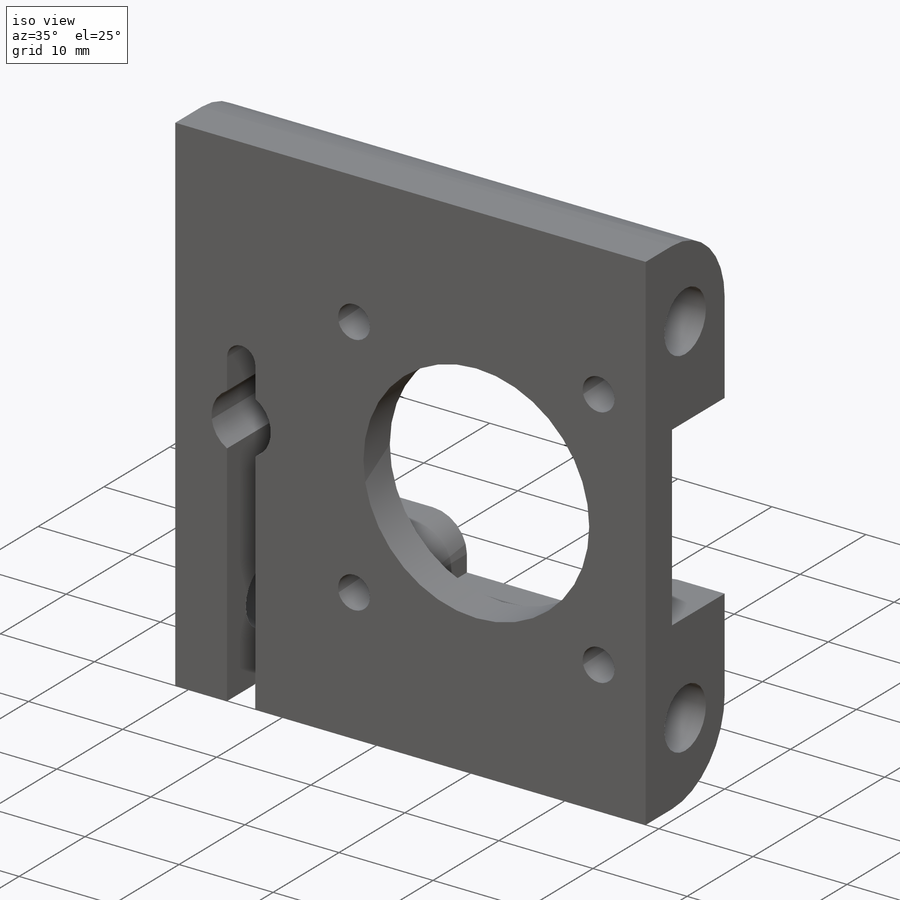
[diagram: iso view]
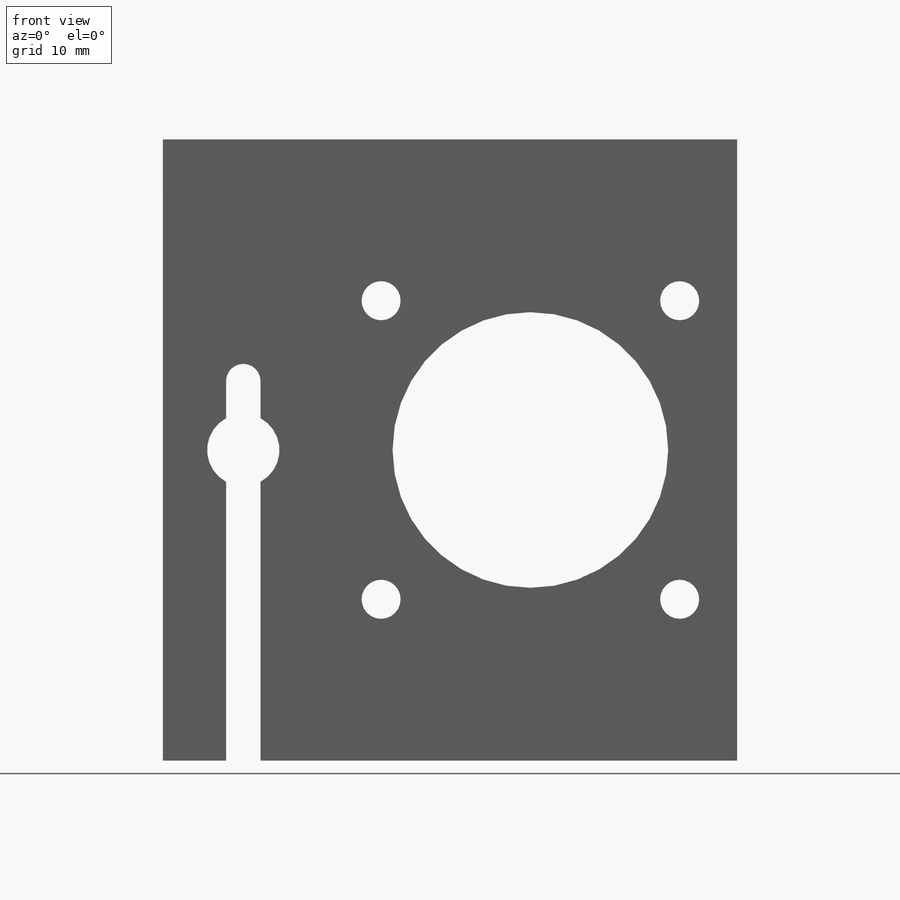
[diagram: front view]
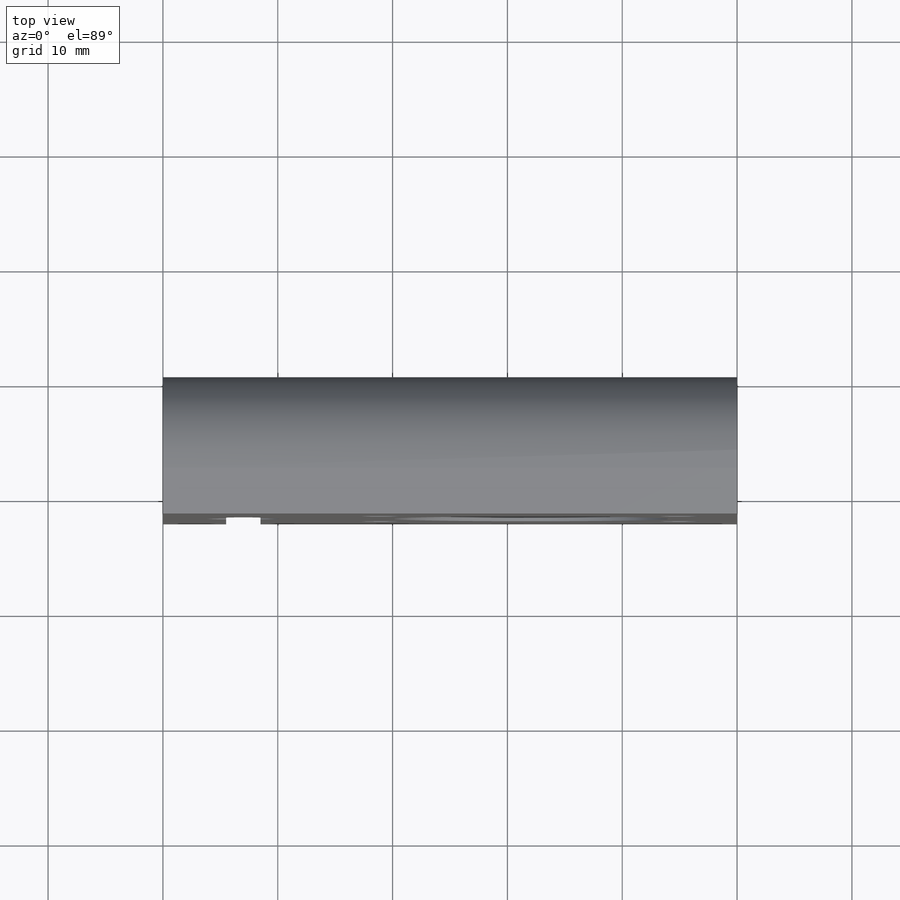
[diagram: top view]
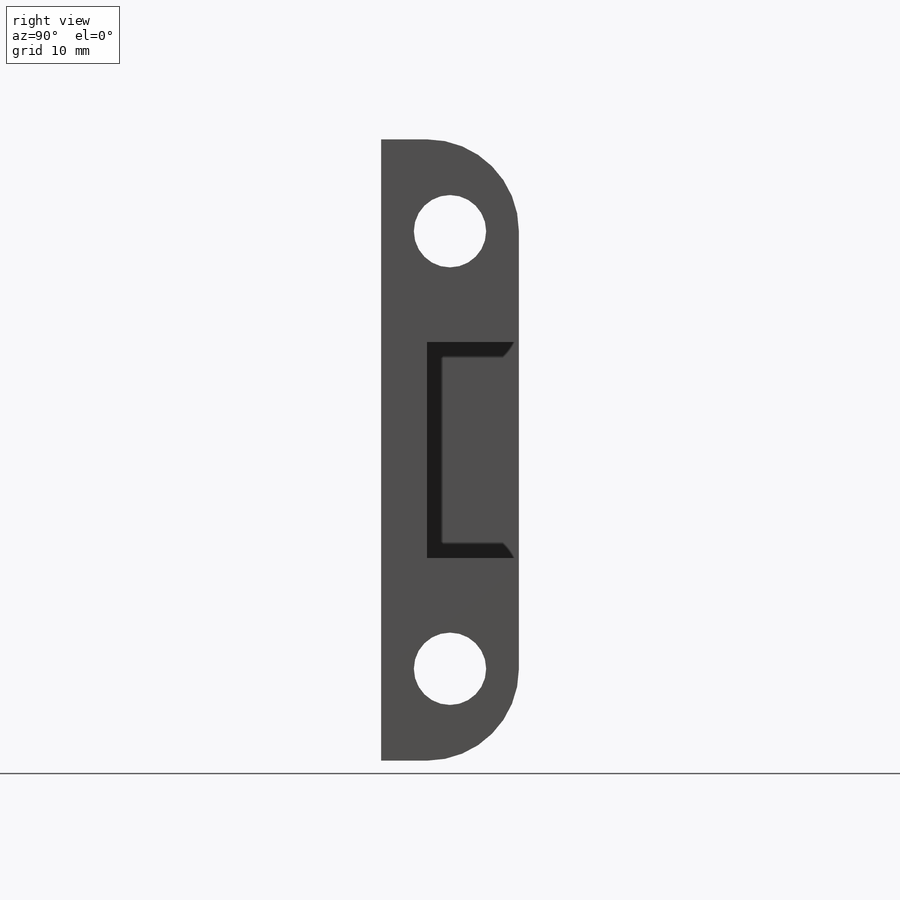
[diagram: right view]
SOLIDWORKS PART (.sldprt)
format: sldprt  version: not decoded by parser v0  size: 279,552 bytes
history: native  units: mm
features: sketch x5, cut_extrude x4, material x1, extrude x1, fillet x1 (+16 scaffold rows collapsed)
feature tree (28):
  scaffold x16  (default folders/planes/origin — collapsed)
  material  "Material <not specified>"
  sketch  "Sketch1"  dims[D1=54.105mm D2=50.0mm]
  extrude  "Boss-Extrude1"  Depth=12mm
  sketch  "Sketch2"  dims[D2=6.3mm D1=6.0mm D3=19.0525mm]
  cut_extrude  "Cut-Extrude1"  [1 undecoded]
  fillet  "Fillet1"  Radius=8mm
  sketch  "Sketch3"  dims[c1.D1=15.0mm c1.D2=6.3mm c1.D5=19.4mm c1.D6=3.4mm c1.D7=24.8mm c2.D1=24.0mm c2.D5=3.4mm c2.D10=3.4mm c2.D3=7.0mm c2.D4=25.0mm c2.D6=1.5mm c2.D8=3.0mm c2.D9=6.0mm c3.D3=7.0mm c3.D10=12.9025mm c3.D7=13.0mm c4.D10=13.0mm c4.D5=13.0mm c4.D11=4.0]
  cut_extrude  "Cut-Extrude2"  [1 undecoded]
  sketch  "Sketch5"  dims[c1.D1=15.0mm c1.D2=15.0mm c2.D1=22.0mm c2.D2=22.0mm c2.D5=3.6mm c3.D1=3.0mm c3.D2=3.0mm c3.D3=2.0mm c3.D4=14.0mm c4.D1=12.9025mm c4.D2=12.9025mm c5.D1=12.9025mm c5.D2=12.9025mm c6.D1=12.9025mm c6.D2=12.9025mm c7.D1=13.0mm]
  cut_extrude  "Cut-Extrude4"  Depth=4mm
  sketch  "Sketch4"  dims[D1=13.4mm]
  cut_extrude  "Cut-Extrude3"  Depth=3mm
decode coverage: 9 of 11 modeling features carry decoded parameters
note: 2 parameter values undecoded
note: suppression state not decoded; provenance and decode notes live in map.json
